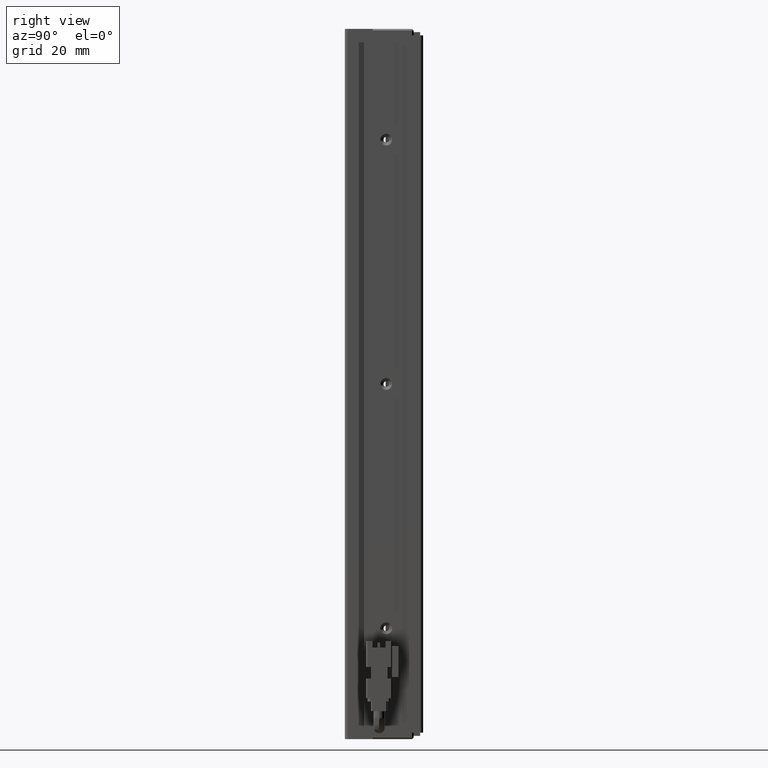
[diagram: clean part render]
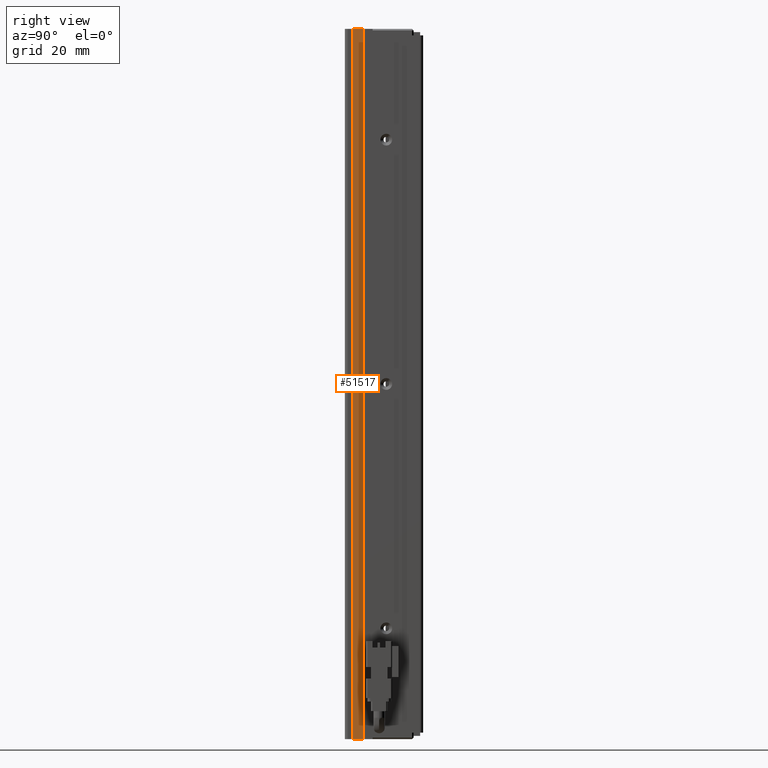
[diagram: same view with one face highlighted and labeled with its STEP entity id]
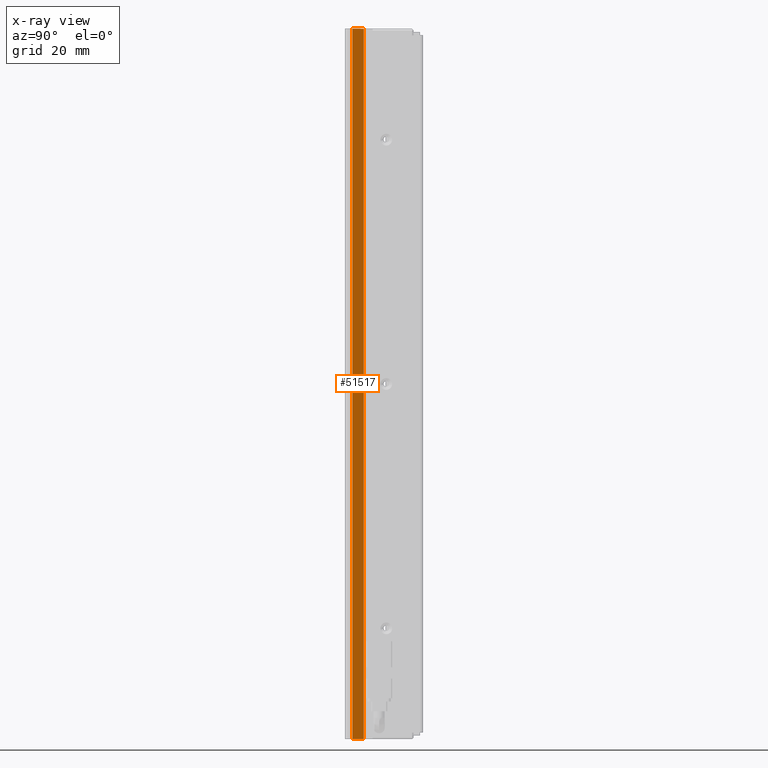
[diagram: x-ray of the same camera — body ghosted, the highlighted face saturated]
A machine part, right view. The second image highlights one B-rep face of the part: STEP entity #51517.
The next image is the same camera in x-ray: the body ghosted, the highlighted face saturated — about 0% of this face is hidden behind the body in this view.
In plain terms, the highlighted planar face has unit normal (1, 0, -0).
Its self-contained STEP definition (entity closure, byte-faithful):
#581 = ORIENTED_EDGE ( 'NONE', *, *, #42286, .T. ) ;
#2821 = ORIENTED_EDGE ( 'NONE', *, *, #51856, .T. ) ;
#5719 = LINE ( 'NONE', #49123, #33289 ) ;
#8568 = VERTEX_POINT ( 'NONE', #54123 ) ;
#9732 = CARTESIAN_POINT ( 'NONE',  ( 46.62537974683541400, 16.79073232304837400, -6.000000000000005300 ) ) ;
#10770 = PLANE ( 'NONE',  #50849 ) ;
#11077 = VERTEX_POINT ( 'NONE', #22232 ) ;
#11263 = CARTESIAN_POINT ( 'NONE',  ( 46.62537974683541400, 7.083797468354437600, -6.000000000000005300 ) ) ;
#11748 = CARTESIAN_POINT ( 'NONE',  ( 46.62537974683541400, 16.79073232304837400, -6.000000000000005300 ) ) ;
#14042 = EDGE_CURVE ( 'NONE', #11077, #8568, #5719, .T. ) ;
#14725 = CARTESIAN_POINT ( 'NONE',  ( 46.62537974683541400, 7.083797468354437600, -224.0000000000000000 ) ) ;
#18471 = VECTOR ( 'NONE', #30510, 1000.000000000000000 ) ;
#22232 = CARTESIAN_POINT ( 'NONE',  ( 46.62537974683541400, 13.29073232304837200, -6.000000000000005300 ) ) ;
#25041 = VECTOR ( 'NONE', #40580, 1000.000000000000000 ) ;
#27129 = FACE_OUTER_BOUND ( 'NONE', #42789, .T. ) ;
#27649 = VERTEX_POINT ( 'NONE', #48649 ) ;
#30510 = DIRECTION ( 'NONE',  ( 0.0000000000000000000, -0.0000000000000000000, 1.000000000000000000 ) ) ;
#32180 = DIRECTION ( 'NONE',  ( -0.0000000000000000000, 0.0000000000000000000, -1.000000000000000000 ) ) ;
#32288 = ORIENTED_EDGE ( 'NONE', *, *, #41760, .F. ) ;
#33289 = VECTOR ( 'NONE', #32180, 1000.000000000000000 ) ;
#37175 = VERTEX_POINT ( 'NONE', #11748 ) ;
#37938 = DIRECTION ( 'NONE',  ( 0.0000000000000000000, 1.000000000000000000, -0.0000000000000000000 ) ) ;
#39532 = LINE ( 'NONE', #11263, #44183 ) ;
#40580 = DIRECTION ( 'NONE',  ( 0.0000000000000000000, 1.000000000000000000, -0.0000000000000000000 ) ) ;
#41760 = EDGE_CURVE ( 'NONE', #11077, #37175, #39532, .T. ) ;
#42228 = LINE ( 'NONE', #9732, #18471 ) ;
#42286 = EDGE_CURVE ( 'NONE', #8568, #27649, #47476, .T. ) ;
#42789 = EDGE_LOOP ( 'NONE', ( #32288, #47687, #581, #2821 ) ) ;
#44183 = VECTOR ( 'NONE', #37938, 1000.000000000000000 ) ;
#44658 = CARTESIAN_POINT ( 'NONE',  ( 46.62537974683541400, 7.083797468354437600, -6.000000000000005300 ) ) ;
#45568 = DIRECTION ( 'NONE',  ( 1.000000000000000000, 0.0000000000000000000, -0.0000000000000000000 ) ) ;
#47476 = LINE ( 'NONE', #14725, #25041 ) ;
#47687 = ORIENTED_EDGE ( 'NONE', *, *, #14042, .T. ) ;
#48649 = CARTESIAN_POINT ( 'NONE',  ( 46.62537974683541400, 16.79073232304837400, -224.0000000000000000 ) ) ;
#49123 = CARTESIAN_POINT ( 'NONE',  ( 46.62537974683541400, 13.29073232304837000, -6.000000000000005300 ) ) ;
#50130 = DIRECTION ( 'NONE',  ( -0.0000000000000000000, 0.0000000000000000000, -1.000000000000000000 ) ) ;
#50849 = AXIS2_PLACEMENT_3D ( 'NONE', #44658, #45568, #50130 ) ;
#51517 = ADVANCED_FACE ( 'NONE', ( #27129 ), #10770, .T. ) ;
#51856 = EDGE_CURVE ( 'NONE', #27649, #37175, #42228, .T. ) ;
#54123 = CARTESIAN_POINT ( 'NONE',  ( 46.62537974683541400, 13.29073232304837200, -224.0000000000000000 ) ) ;